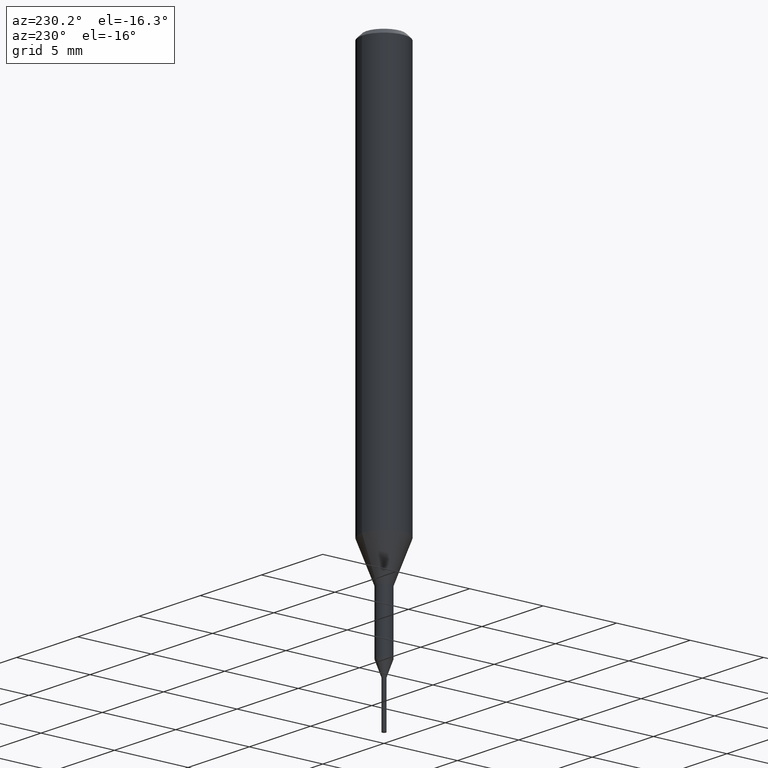
[diagram: clean part render]
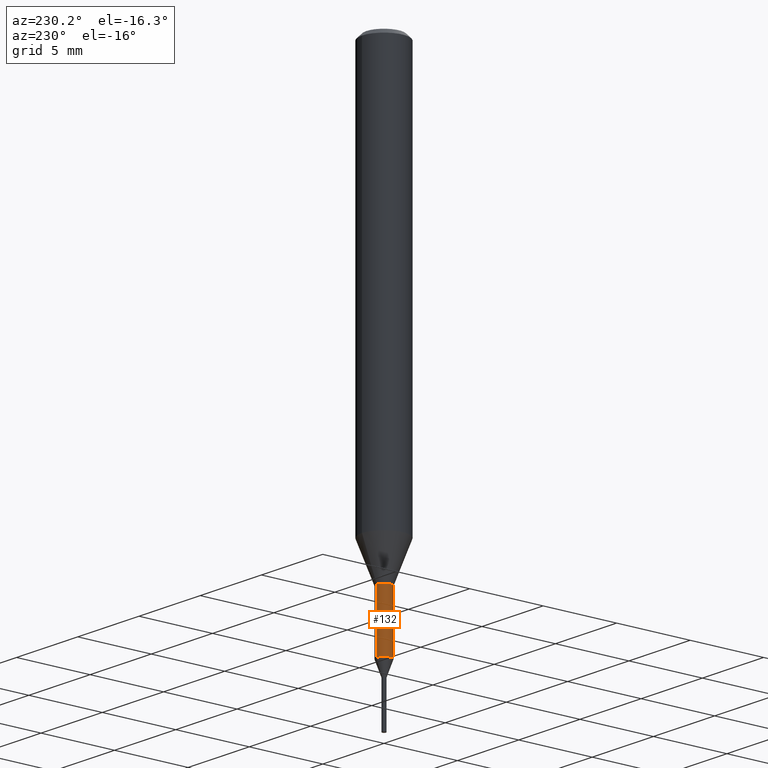
[diagram: same view with one face highlighted and labeled with its STEP entity id]
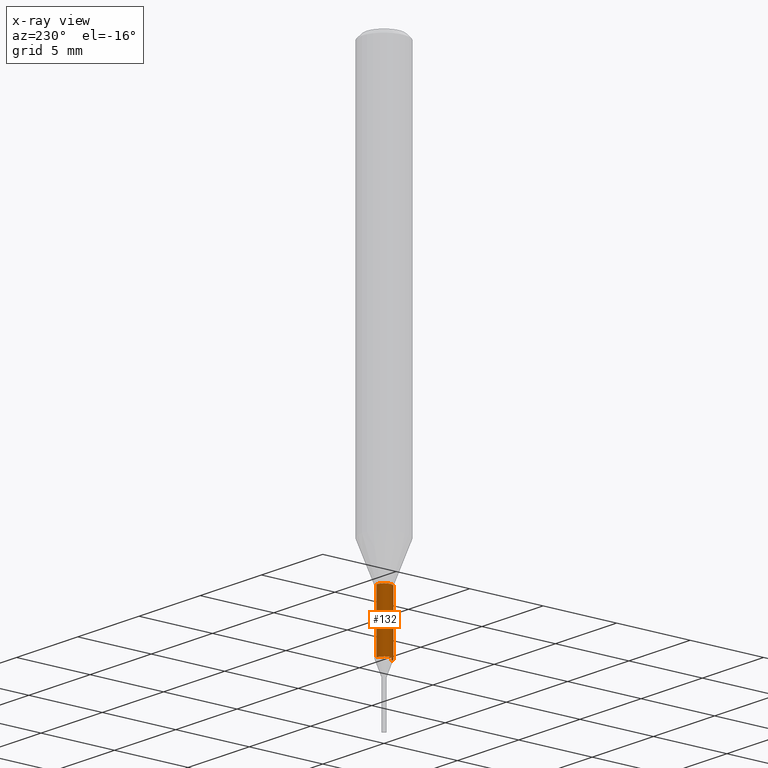
[diagram: x-ray of the same camera — body ghosted, the highlighted face saturated]
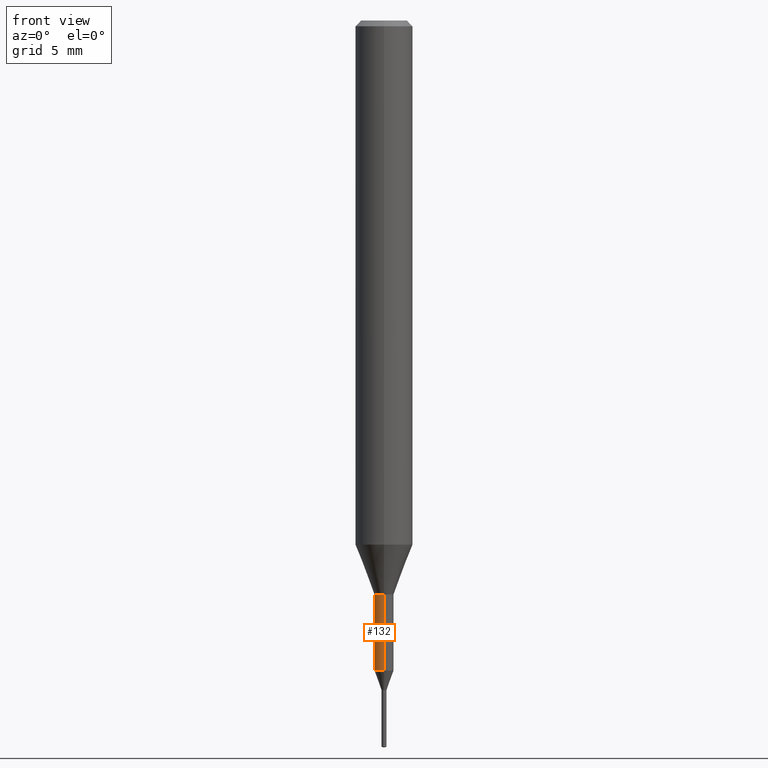
[diagram: same view with one face highlighted and labeled with its STEP entity id]
A machine part, auxiliary view. The second image highlights one B-rep face of the part: STEP entity #132.
The next image is the same camera in x-ray: the body ghosted, the highlighted face saturated — about 0% of this face is hidden behind the body in this view.
A second angle (front view) of the same face is appended — the face is thin or edge-on in the first view.
In plain terms, the highlighted cylindrical surface (edge-blend (fillet) strip) has radius 0.5 mm, axis along (-0, -0, 1).
Its self-contained STEP definition (entity closure, byte-faithful):
#116=VERTEX_POINT('',#293);
#126=EDGE_CURVE('',#228,#116,#304,.T.);
#132=ADVANCED_FACE('',(#310),#311,.T.);
#184=VERTEX_POINT('',#373);
#186=EDGE_CURVE('',#116,#244,#375,.T.);
#194=EDGE_CURVE('',#244,#184,#384,.T.);
#210=EDGE_CURVE('',#228,#184,#400,.T.);
#228=VERTEX_POINT('',#421);
#244=VERTEX_POINT('',#440);
#293=CARTESIAN_POINT('',(6.12241946593498E-017,-0.49995,-30.0));
#304=LINE('',#497,#498);
#310=FACE_OUTER_BOUND('',#505,.T.);
#311=CYLINDRICAL_SURFACE('',#506,0.49995);
#373=CARTESIAN_POINT('',(0.0,0.49995,-33.983));
#375=CIRCLE('',#586,0.49995);
#384=LINE('',#598,#599);
#400=CIRCLE('',#625,0.49995);
#421=CARTESIAN_POINT('',(6.12241946593497E-017,-0.49995,-33.983));
#440=CARTESIAN_POINT('',(0.0,0.49995,-30.0));
#497=CARTESIAN_POINT('',(6.12241946593497E-017,-0.49995,-31.9915));
#498=VECTOR('',#721,1.0);
#505=EDGE_LOOP('',(#726,#727,#728,#729));
#506=AXIS2_PLACEMENT_3D('',#730,#731,#732);
#586=AXIS2_PLACEMENT_3D('',#818,#819,#820);
#598=CARTESIAN_POINT('',(-6.12241946593497E-017,0.49995,-31.9915));
#599=VECTOR('',#835,1.0);
#625=AXIS2_PLACEMENT_3D('',#853,#854,#855);
#721=DIRECTION('',(-0.0,-0.0,1.0));
#726=ORIENTED_EDGE('',*,*,#194,.T.);
#727=ORIENTED_EDGE('',*,*,#210,.F.);
#728=ORIENTED_EDGE('',*,*,#126,.T.);
#729=ORIENTED_EDGE('',*,*,#186,.T.);
#730=CARTESIAN_POINT('',(0.0,0.0,-31.9915));
#731=DIRECTION('',(-0.0,-0.0,1.0));
#732=DIRECTION('',(0.0,1.0,0.0));
#818=CARTESIAN_POINT('',(0.0,0.0,-30.0));
#819=DIRECTION('',(0.0,0.0,-1.0));
#820=DIRECTION('',(0.0,1.0,0.0));
#835=DIRECTION('',(0.0,0.0,-1.0));
#853=CARTESIAN_POINT('',(0.0,0.0,-33.983));
#854=DIRECTION('',(0.0,0.0,-1.0));
#855=DIRECTION('',(0.0,1.0,0.0));